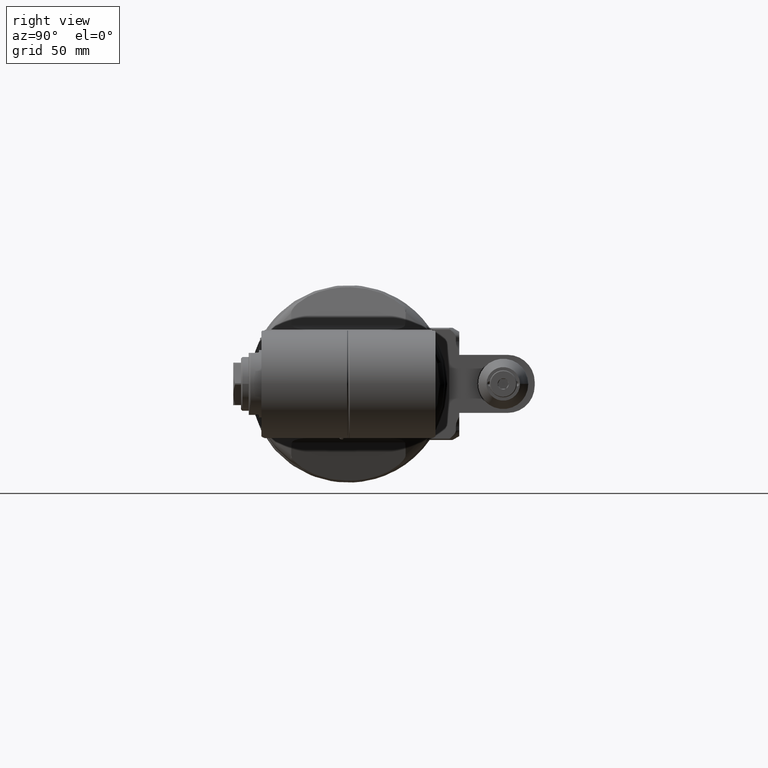
[diagram: clean part render]
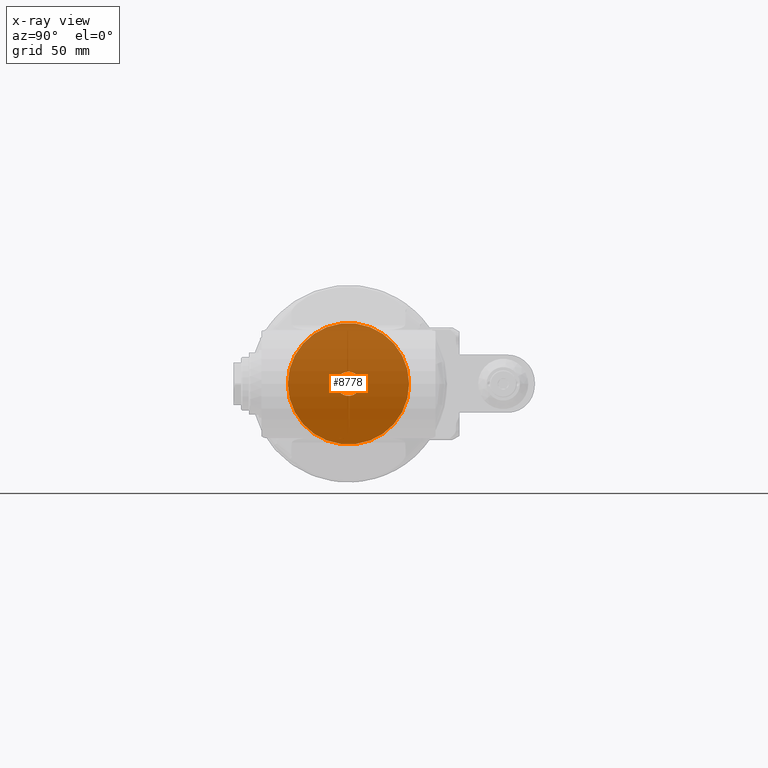
[diagram: x-ray — body ghosted, one internal face saturated and labeled with its STEP entity id]
A machine part, right view, then the same camera in x-ray: the body is ghosted and one INTERNAL B-rep face — a face not visible from any outside direction — is saturated and labeled: STEP entity #8778.
In plain terms, the highlighted planar face has unit normal (1, 0, 0).
Its self-contained STEP definition (entity closure, byte-faithful):
#162=FACE_BOUND('',#1553,.T.);
#495=PLANE('',#9590);
#978=FACE_OUTER_BOUND('',#1552,.T.);
#1552=EDGE_LOOP('',(#7180));
#1553=EDGE_LOOP('',(#7181));
#2048=CIRCLE('',#9566,1.23425196850394);
#2057=CIRCLE('',#9591,0.246062992125984);
#4019=VERTEX_POINT('',#52955);
#4042=VERTEX_POINT('',#53052);
#5117=EDGE_CURVE('',#4019,#4019,#2048,.T.);
#5154=EDGE_CURVE('',#4042,#4042,#2057,.T.);
#7180=ORIENTED_EDGE('',*,*,#5117,.T.);
#7181=ORIENTED_EDGE('',*,*,#5154,.T.);
#8778=ADVANCED_FACE('',(#978,#162),#495,.T.);
#9566=AXIS2_PLACEMENT_3D('',#52957,#11304,#11305);
#9590=AXIS2_PLACEMENT_3D('',#53051,#11370,#11371);
#9591=AXIS2_PLACEMENT_3D('',#53053,#11372,#11373);
#11304=DIRECTION('center_axis',(1.,0.,0.));
#11305=DIRECTION('ref_axis',(0.,1.,0.));
#11370=DIRECTION('center_axis',(1.,0.,0.));
#11371=DIRECTION('ref_axis',(0.,1.,0.));
#11372=DIRECTION('center_axis',(-1.,3.549938121233E-13,7.10420275124E-13));
#11373=DIRECTION('ref_axis',(3.549938121233E-13,1.,-2.06645935618054E-28));
#52955=CARTESIAN_POINT('',(-1.25984251968504,1.23425196850394,0.));
#52957=CARTESIAN_POINT('Origin',(-1.25984251968504,0.,0.));
#53051=CARTESIAN_POINT('Origin',(-1.25984251968504,0.,0.));
#53052=CARTESIAN_POINT('',(-1.25984251792629,0.246062992126957,-8.10240825376372E-13));
#53053=CARTESIAN_POINT('Origin',(-1.25984251792638,9.73057771781496E-13,
-8.10210691350787E-13));